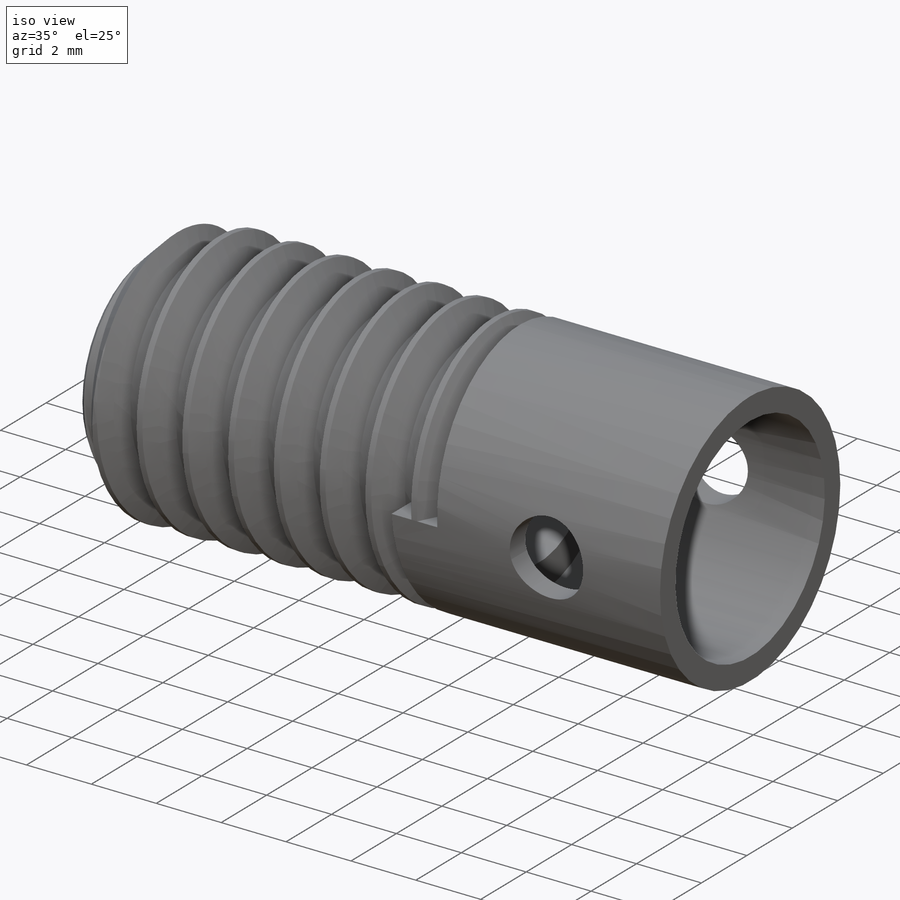
[diagram: iso view]
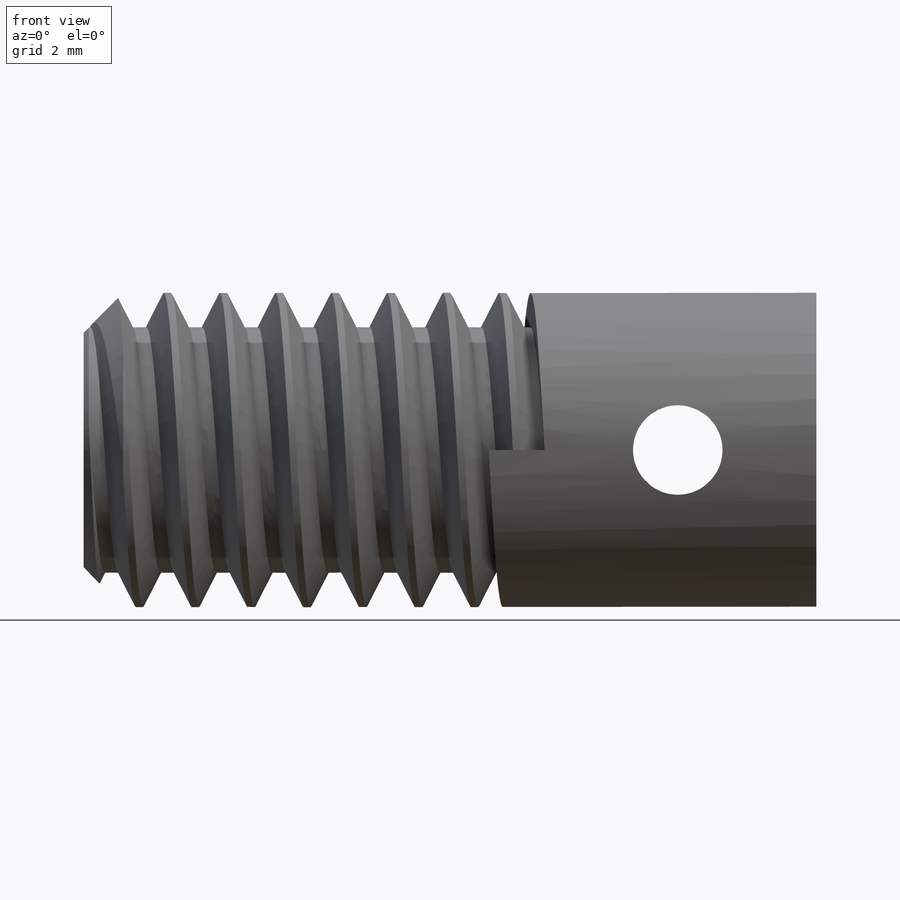
[diagram: front view]
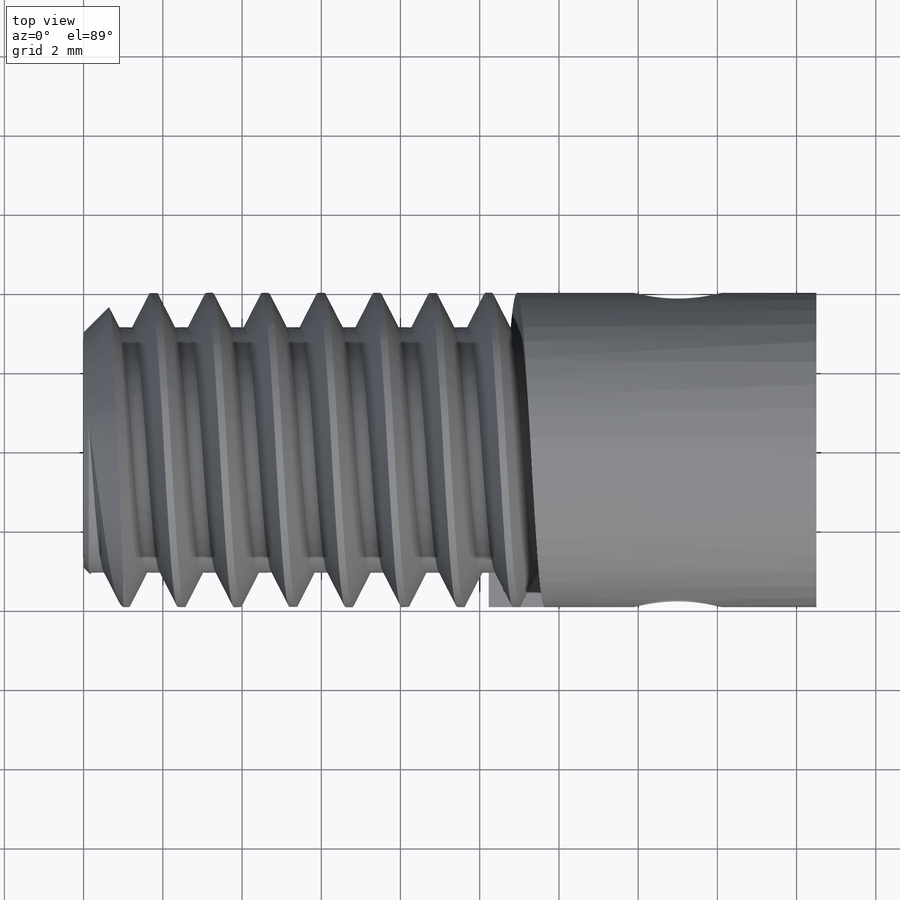
[diagram: top view]
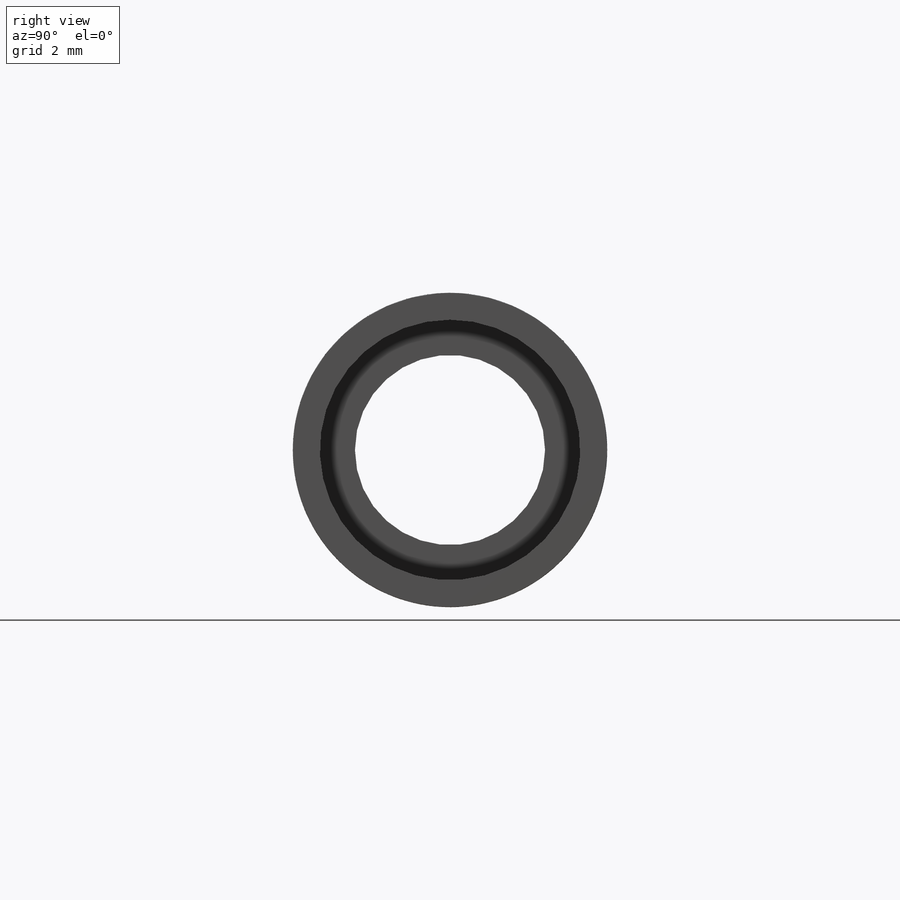
[diagram: right view]
SOLIDWORKS PART (.sldprt)
format: sldprt  version: not decoded by parser v0  size: 562,176 bytes
history: native  units: mm
features: sketch x12, cut_extrude x6, extrude x2, material x1, helix x1, chamfer x1, sweep x1, hole x1, thread x1 (+14 scaffold rows collapsed; 1 parser-record rows omitted)
feature tree (41):
  scaffold x14  (default folders/planes/origin — collapsed)
  material  "Material <not specified>"
  sketch  "Sketch2"  dims[D1=7.9375mm D2=6.1722mm]
  extrude  "Body"  Depth=100mm
  sketch  "Sketch3"  dims[D1=1.0mm D2=25.25mm]
  cut_extrude  "Screw hole for wheel"  [1 undecoded]
  sketch  "Sketch4"  dims[c1.D1=13.5mm c1.D2=1.75mm c1.D3=5.0mm c2.D1=13.5mm c2.D2=25.0mm c3.D1=1.75mm c3.D2=12.75mm c3.D3=3.5mm c4.D2=25.5mm c4.D3=12.25mm]
  parser-record x1  (decoder bookkeeping rows leaked as tree rows — omitted from the tree; the rows remain in map.json)
  sketch  "Sketch5"  dims[D1=7.9375mm]
  extrude  "Nose"  Depth=12mm
  sketch  "Sketch7"  dims[D1=3.1mm D2=0.09mm D3=0.18mm D4=0.71mm]
  sketch  "Sketch8"
  helix  "Helix/Spiral1"  Pitch=11.985mm
  chamfer  "Chamfer1"  Distance=1mm Angle=45deg
  sketch  "Sketch10"  dims[D1=4.8mm]
  cut_extrude  "Cut-Extrude3"  [1 undecoded]
  sweep  "Cut-Sweep1"
  cut_extrude  "cavity for wheel"  [1 undecoded]
  hole  "#2-56 Tapped Hole2"  Diameter=1.778mm Depth=1.75mm
  sketch  "Sketch15"
  sketch  "Sketch14"  dims[hole-wizard template sketch: 61 standard entries collapsed; hole parameters above]
  thread  "Hole Thread3"  Diameter=2.1844mm  [1 undecoded]
  sketch  "Sketch17"  dims[D1=2.2606mm D2=9.5mm]
  cut_extrude  "Cut-Extrude5"  Depth=10mm
  sketch  "Sketch16"  dims[D1=6.0mm]
  cut_extrude  "Cut-Extrude4"  Depth=10mm
  sketch  "Sketch18"  dims[D1=0.2mm]
  cut_extrude  "Cut-Extrude6"  [1 undecoded]
decode coverage: 18 of 25 modeling features carry decoded parameters
note: ~ marks probable driven/reference dimensions
note: 5 parameter values undecoded
summary: no parameter record found for 4 features
note: suppression state not decoded; provenance and decode notes live in map.json
